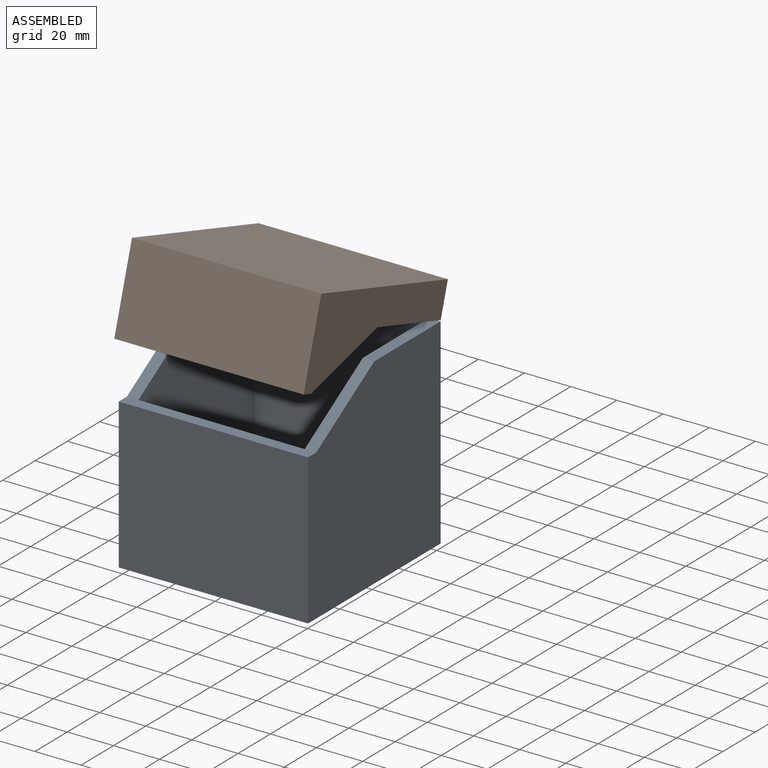
[diagram: assembled view]
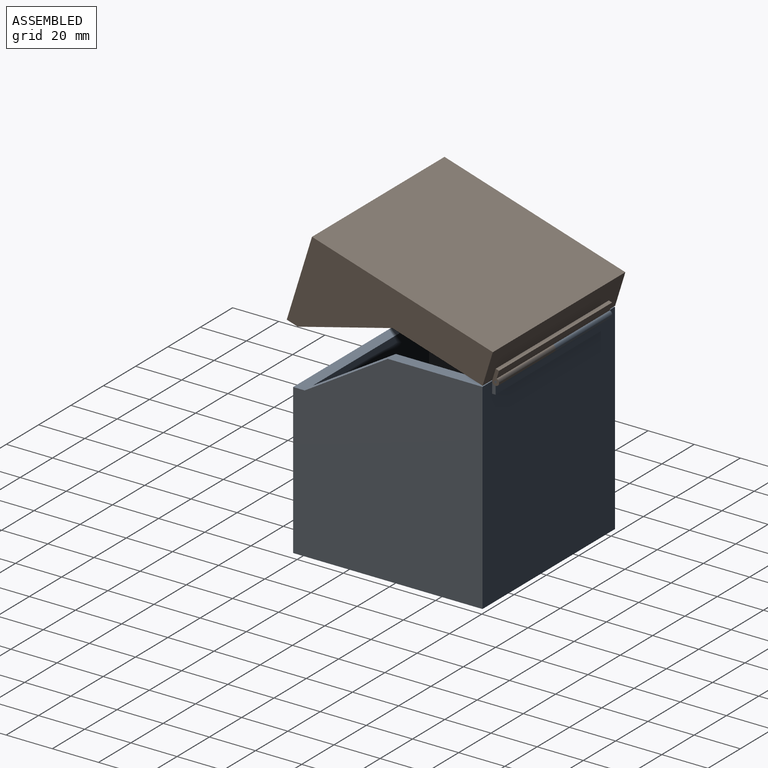
[diagram: assembled view, second angle]
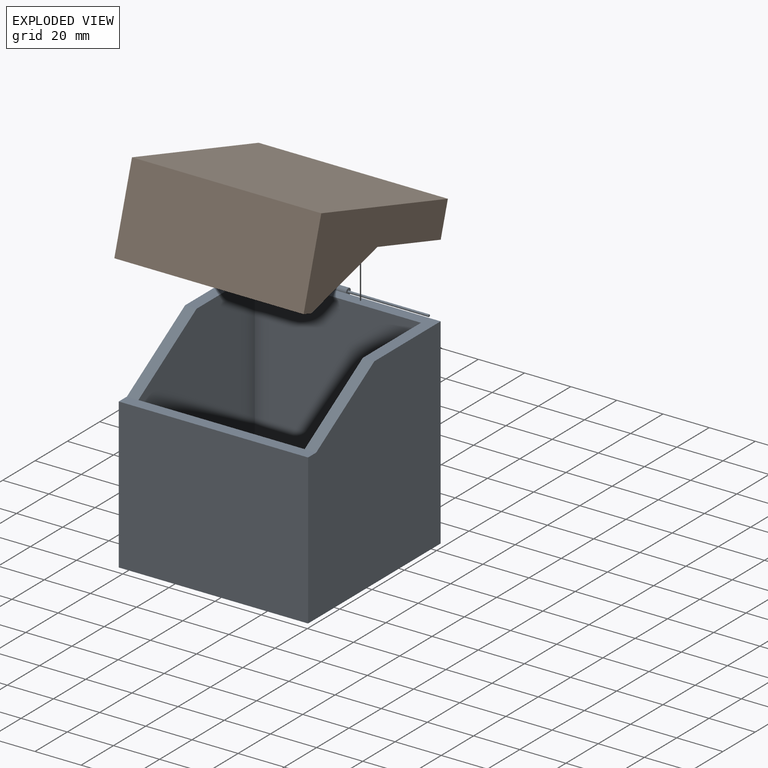
[diagram: exploded view]
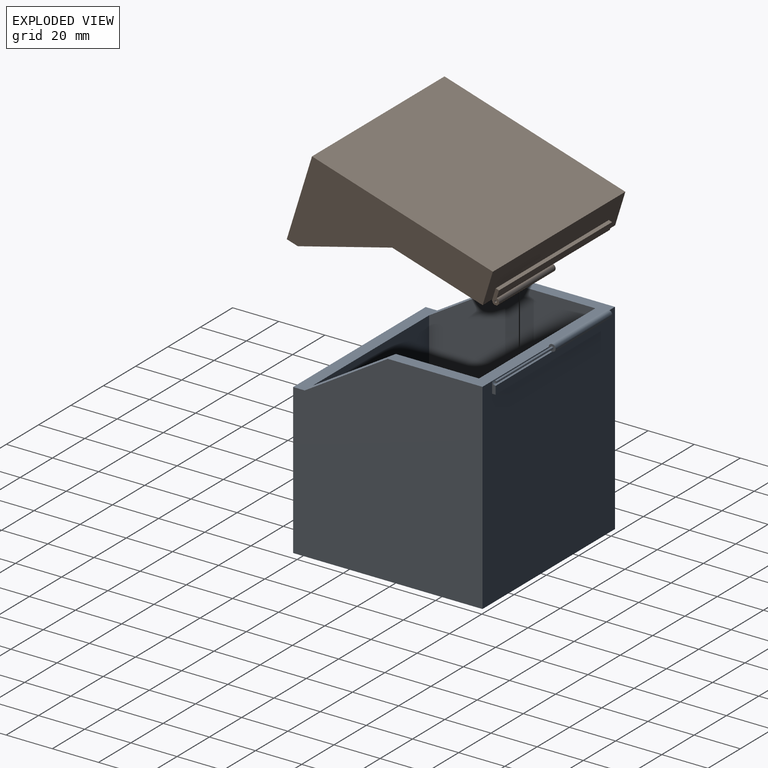
[diagram: exploded view, second angle]
ASSEMBLY  parts=2 mates=2
PART A: 23 faces, bbox 82x85x88.5 mm
  f0: plane 87x82mm, normal (0,1,0), area 6784mm2, adj f4,f6,f7,f8,f15,f18,f20
  f1: plane 82x72mm, normal (1,0,0), area 5508mm2, adj f2,f8,f11,f12,f13
  f2: plane 72x72mm, normal (0,0,1), area 5184mm2, adj f1,f3,f12,f13
  f3: plane 82x72mm, normal (-1,0,0), area 5508mm2, adj f2,f8,f9,f12,f13
  f4: plane 87x82mm, normal (-1,0,0), area 6628mm2, adj f0,f5,f7,f8,f10,f11
  f5: plane 82x65mm, normal (0,-1,0), area 5330mm2, adj f4,f6,f7,f10
  f6: plane 87x82mm, normal (1,0,0), area 6628mm2, adj f0,f5,f7,f8,f9,f10
  f7: plane 82x82mm, normal (0,0,-1), area 6724mm2, adj f0,f4,f5,f6
  f8: plane 82x41mm, normal (0,0,1), area 770mm2, adj f0,f1,f3,f4,f6,f9,f11,f13
  f9: plane 36x22mm, normal (0,-0.52,0.85), area 211mm2, adj f3,f6,f8,f10
  f10: plane 82x5mm, normal (0,0,1), area 410mm2, adj f4,f5,f6,f9,f11,f12
  f11: plane 36x22mm, normal (0,-0.52,0.85), area 211mm2, adj f1,f4,f8,f10
  f12: plane 72x60mm, normal (0,1,0), area 4320mm2, adj f1,f2,f3,f10
  f13: plane 82x72mm, normal (0,-1,0), area 5904mm2, adj f1,f2,f3,f8
  f14: cylinder r=1.5mm len=35mm, axis (1,0,0), area 247.4mm2, adj f8,f15,f16,f19
  f15: plane 6.5x3mm, normal (-1,0,0), area 12.8mm2, adj f0,f14,f18,f19
  f16: plane 3x3mm, normal (1,0,0), area 6.3mm2, adj f14,f17,f22
  f17: cylinder r=1.5mm len=35mm, axis (-1,0,0), area 82.5mm2, adj f8,f16,f19,f20
  f18: plane 70x1.5mm, normal (0,0,-1), area 105mm2, adj f0,f15,f19,f20
  f19: plane 70x3.5mm, normal (0,1,0), area 245mm2, adj f14,f15,f17,f18,f20
  f20: plane 5x1.5mm, normal (1,0,0), area 5.7mm2, adj f0,f17,f18,f19
  f21: plane 1x1mm, normal (1,0,0), area 0.8mm2, adj f22
  f22: cylinder r=0.5mm len=35mm, axis (-1,0,0), area 110mm2, adj f16,f21
PART B: 22 faces, bbox 82x85x37 mm
  f0: plane 72x32mm, normal (-1,0,0), area 1116mm2, adj f3,f4,f11,f12,f13
  f1: plane 82x37mm, normal (0,-1,0), area 3034mm2, adj f2,f6,f7,f10
  f2: plane 82x5mm, normal (0,0,-1), area 410mm2, adj f1,f3,f7,f8,f10,f12
  f3: plane 36x22mm, normal (0,0.52,-0.85), area 211mm2, adj f0,f2,f4,f7
  f4: plane 82x41mm, normal (0,0,-1), area 770mm2, adj f0,f3,f5,f7,f8,f9,f10,f13
  f5: plane 82x15mm, normal (0,1,0), area 880mm2, adj f4,f6,f7,f10,f16,f20,f21
  f6: plane 82x82mm, normal (0,0,1), area 6724mm2, adj f1,f5,f7,f10
  f7: plane 82x37mm, normal (1,0,0), area 1736mm2, adj f1,f2,f3,f4,f5,f6
  f8: plane 36x22mm, normal (0,0.52,-0.85), area 211mm2, adj f2,f4,f9,f10
  f9: plane 72x32mm, normal (1,0,0), area 1116mm2, adj f4,f8,f11,f12,f13
  f10: plane 82x37mm, normal (-1,0,0), area 1736mm2, adj f1,f2,f4,f5,f6,f8
  f11: plane 72x72mm, normal (0,0,-1), area 5184mm2, adj f0,f9,f12,f13
  f12: plane 72x32mm, normal (0,1,0), area 2304mm2, adj f0,f2,f9,f11
  f13: plane 72x10mm, normal (0,-1,0), area 720mm2, adj f0,f4,f9,f11
  f14: cylinder r=1.5mm len=35mm, axis (-1,0,0), area 247.4mm2, adj f4,f16,f17,f19
  f15: cylinder r=0.5mm len=35mm, axis (-1,0,0), area 110mm2, adj f16,f17
  f16: plane 6.5x3mm, normal (1,0,0), area 12mm2, adj f5,f14,f15,f19,f20
  f17: plane 3x3mm, normal (-1,0,0), area 6.3mm2, adj f14,f15,f18
  f18: cylinder r=1.5mm len=35mm, axis (-1,0,0), area 82.5mm2, adj f4,f17,f19,f21
  f19: plane 70x3.5mm, normal (0,1,0), area 245mm2, adj f14,f16,f18,f20,f21
  f20: plane 70x1.5mm, normal (0,0,1), area 105mm2, adj f5,f16,f19,f21
  f21: plane 5x1.5mm, normal (-1,0,0), area 5.7mm2, adj f5,f18,f19,f20
PLACE A at identity fixed
PLACE B rot(axis=(-1,0,0),17.2deg) t=(0,-23.8,16.43)mm
MATE cylindrical B.f14 <-> A.f14  axis (-1,0,0) through (0,42.5,87)mm
MATE planar A.f14 <-> B.f14  axis (1,0,0) through (0,42.5,87)mm
